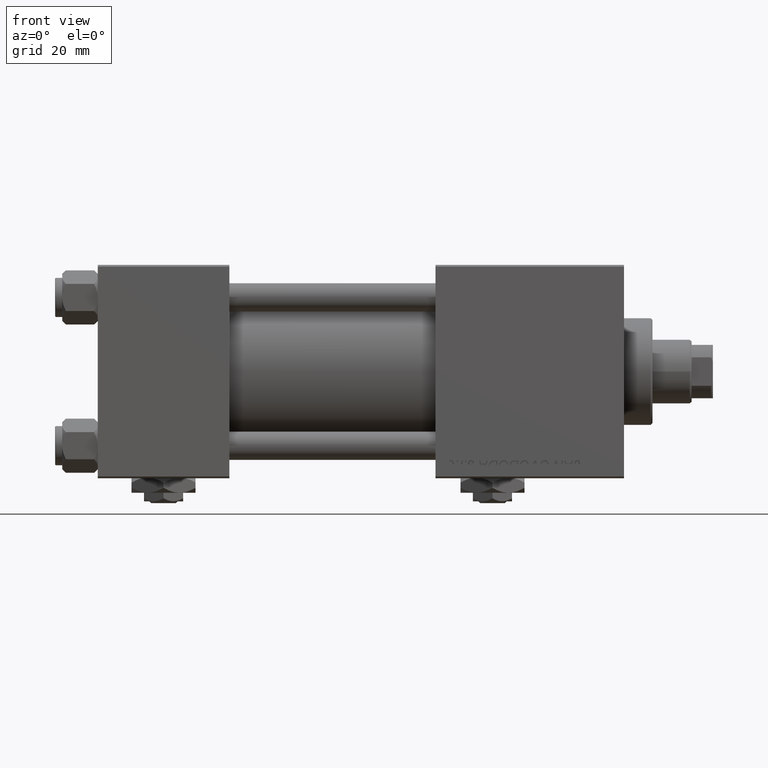
[diagram: clean part render]
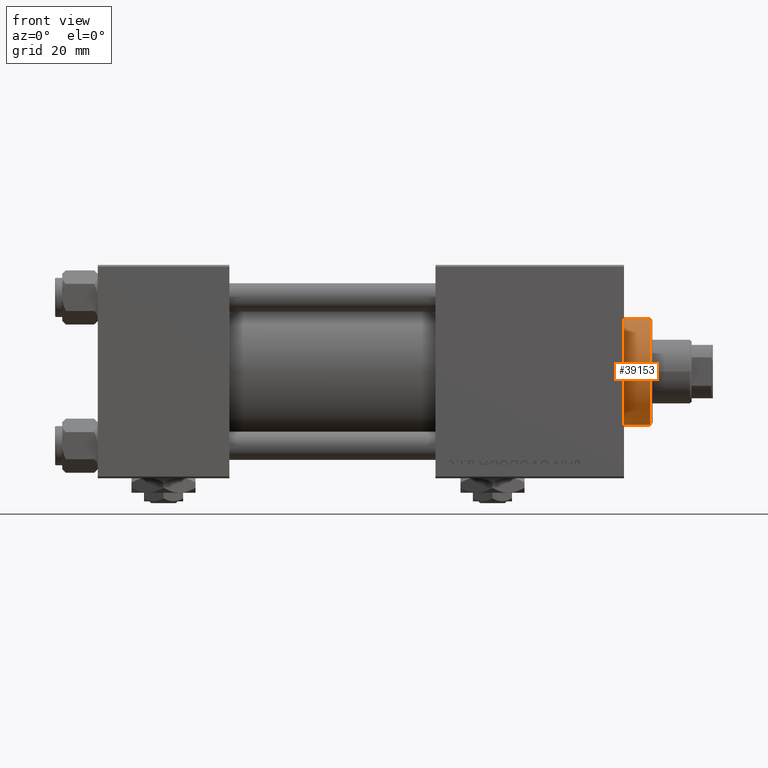
[diagram: same view with one face highlighted and labeled with its STEP entity id]
A machine part, front view. The second image highlights one B-rep face of the part: STEP entity #39153.
In plain terms, the highlighted cylindrical surface (partial cylindrical patch) has radius 15 mm, axis along (-1, -0, -0).
Its self-contained STEP definition (entity closure, byte-faithful):
#900 = ORIENTED_EDGE ( 'NONE', *, *, #4308, .T. ) ;
#2220 = CIRCLE ( 'NONE', #29324, 15.00000000000000000 ) ;
#3520 = EDGE_CURVE ( 'NONE', #15760, #13255, #29197, .T. ) ;
#4293 = CARTESIAN_POINT ( 'NONE',  ( 15.00000000000000000, 1.836970198721029589E-15, 36.20000000000000284 ) ) ;
#4308 = EDGE_CURVE ( 'NONE', #15760, #5269, #2220, .T. ) ;
#4595 = CARTESIAN_POINT ( 'NONE',  ( 0.000000000000000000, 0.000000000000000000, 28.69999999999999929 ) ) ;
#5269 = VERTEX_POINT ( 'NONE', #5287 ) ;
#5287 = CARTESIAN_POINT ( 'NONE',  ( -15.00000000000000000, 0.000000000000000000, 36.20000000000000284 ) ) ;
#6140 = CARTESIAN_POINT ( 'NONE',  ( -15.00000000000000000, 0.000000000000000000, 28.69999999999999929 ) ) ;
#8823 = VERTEX_POINT ( 'NONE', #6140 ) ;
#9686 = AXIS2_PLACEMENT_3D ( 'NONE', #10503, #26962, #26693 ) ;
#10503 = CARTESIAN_POINT ( 'NONE',  ( 0.000000000000000000, 0.000000000000000000, 36.69999999999999574 ) ) ;
#13255 = VERTEX_POINT ( 'NONE', #31558 ) ;
#14333 = DIRECTION ( 'NONE',  ( 0.000000000000000000, 0.000000000000000000, -1.000000000000000000 ) ) ;
#15112 = CARTESIAN_POINT ( 'NONE',  ( 0.000000000000000000, 0.000000000000000000, 36.20000000000000284 ) ) ;
#15760 = VERTEX_POINT ( 'NONE', #4293 ) ;
#18198 = AXIS2_PLACEMENT_3D ( 'NONE', #4595, #41179, #28725 ) ;
#19753 = EDGE_LOOP ( 'NONE', ( #50189, #900, #22974, #46249 ) ) ;
#22429 = CIRCLE ( 'NONE', #18198, 15.00000000000000000 ) ;
#22974 = ORIENTED_EDGE ( 'NONE', *, *, #34670, .T. ) ;
#23308 = LINE ( 'NONE', #47677, #25637 ) ;
#25637 = VECTOR ( 'NONE', #27052, 1000.000000000000000 ) ;
#26693 = DIRECTION ( 'NONE',  ( -1.000000000000000000, 0.000000000000000000, 0.000000000000000000 ) ) ;
#26962 = DIRECTION ( 'NONE',  ( -0.000000000000000000, -0.000000000000000000, -1.000000000000000000 ) ) ;
#27052 = DIRECTION ( 'NONE',  ( -0.000000000000000000, -0.000000000000000000, -1.000000000000000000 ) ) ;
#28725 = DIRECTION ( 'NONE',  ( 1.000000000000000000, 0.000000000000000000, 0.000000000000000000 ) ) ;
#29197 = LINE ( 'NONE', #49588, #37726 ) ;
#29324 = AXIS2_PLACEMENT_3D ( 'NONE', #15112, #14333, #30761 ) ;
#30761 = DIRECTION ( 'NONE',  ( 1.000000000000000000, 0.000000000000000000, 0.000000000000000000 ) ) ;
#31558 = CARTESIAN_POINT ( 'NONE',  ( 15.00000000000000000, 1.836970198721029589E-15, 28.69999999999999929 ) ) ;
#34116 = FACE_OUTER_BOUND ( 'NONE', #19753, .T. ) ;
#34670 = EDGE_CURVE ( 'NONE', #5269, #8823, #23308, .T. ) ;
#37726 = VECTOR ( 'NONE', #45635, 1000.000000000000000 ) ;
#38882 = CYLINDRICAL_SURFACE ( 'NONE', #9686, 15.00000000000000000 ) ;
#39153 = ADVANCED_FACE ( 'NONE', ( #34116 ), #38882, .T. ) ;
#41179 = DIRECTION ( 'NONE',  ( 0.000000000000000000, 0.000000000000000000, 1.000000000000000000 ) ) ;
#44730 = EDGE_CURVE ( 'NONE', #8823, #13255, #22429, .T. ) ;
#45635 = DIRECTION ( 'NONE',  ( -0.000000000000000000, -0.000000000000000000, -1.000000000000000000 ) ) ;
#46249 = ORIENTED_EDGE ( 'NONE', *, *, #44730, .T. ) ;
#47677 = CARTESIAN_POINT ( 'NONE',  ( -15.00000000000000000, 0.000000000000000000, 36.69999999999999574 ) ) ;
#49588 = CARTESIAN_POINT ( 'NONE',  ( 15.00000000000000000, 1.836970198721029589E-15, 36.69999999999999574 ) ) ;
#50189 = ORIENTED_EDGE ( 'NONE', *, *, #3520, .F. ) ;